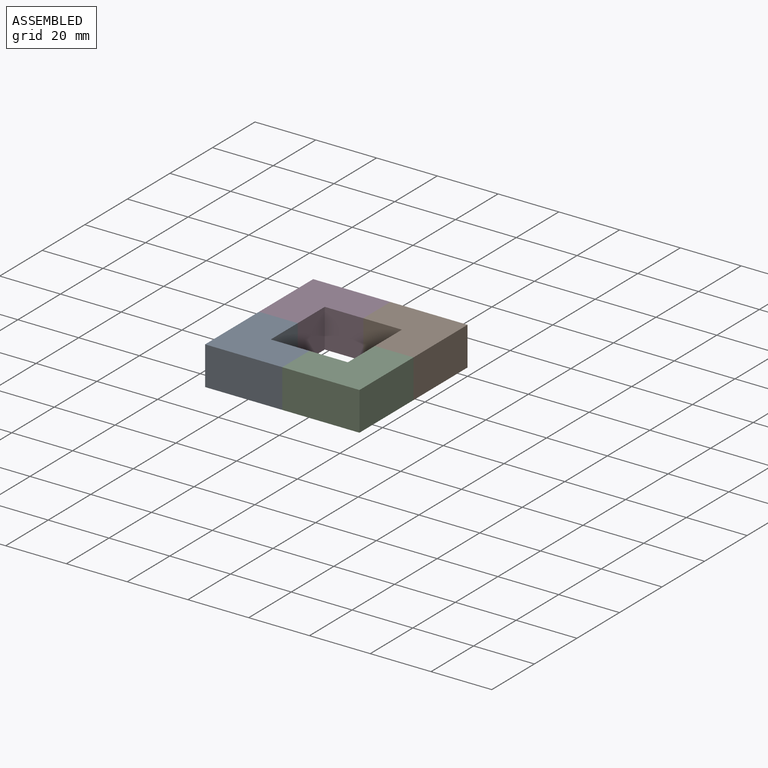
[diagram: assembled view]
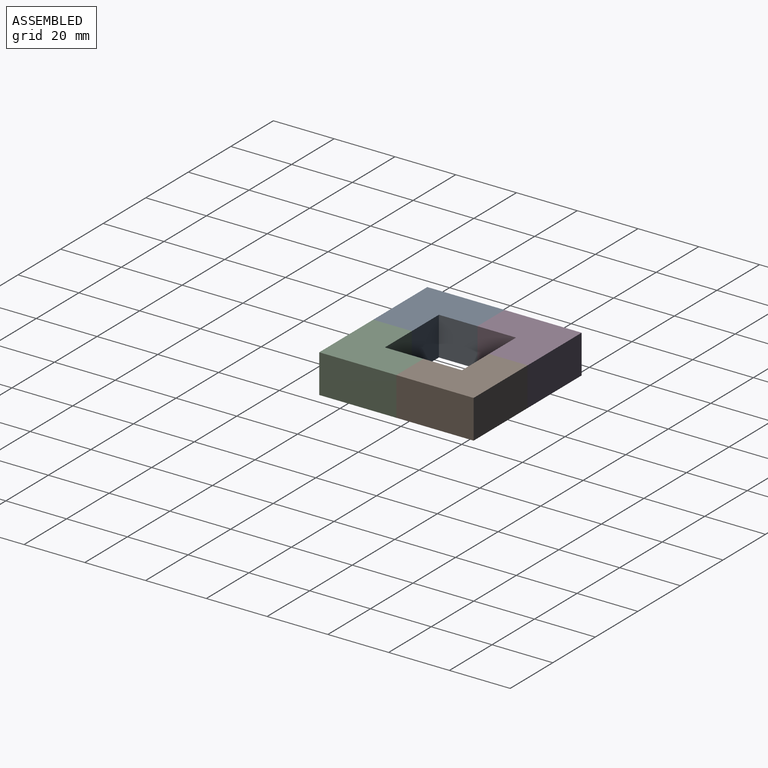
[diagram: assembled view, second angle]
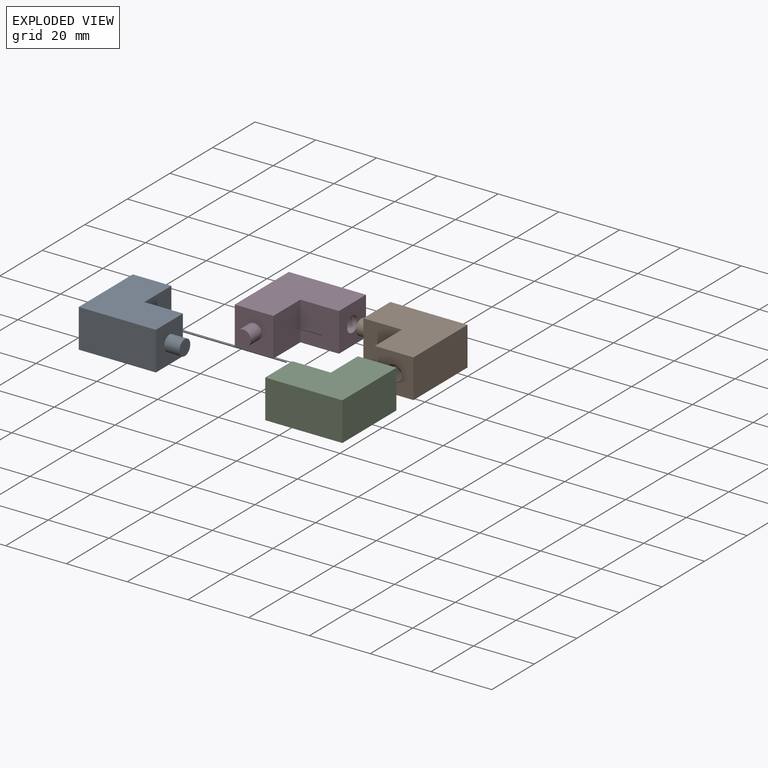
[diagram: exploded view]
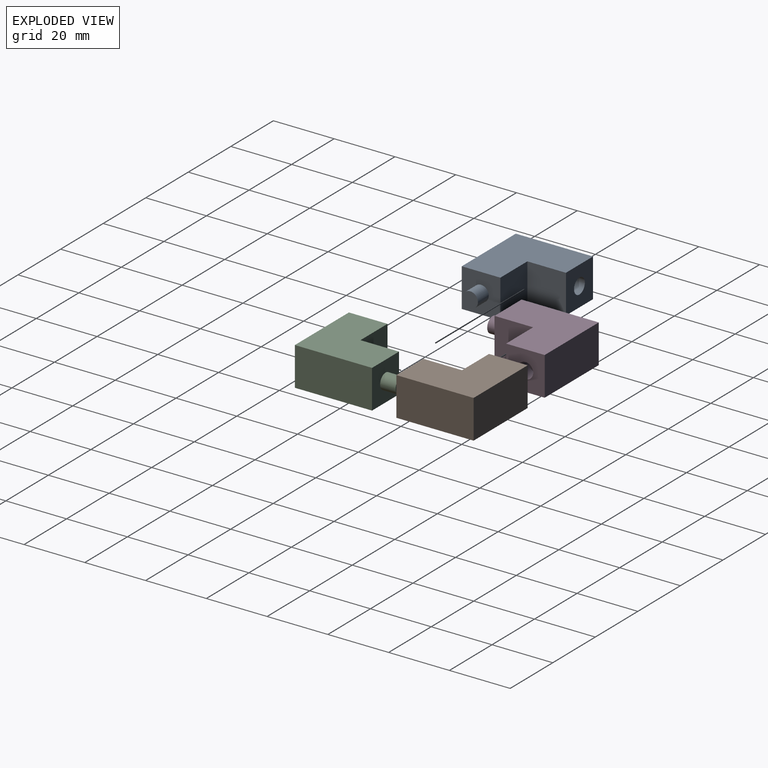
[diagram: exploded view, second angle]
ASSEMBLY  parts=4 mates=3
PART A: 12 faces, bbox 25.4x30.5x12.7 mm
  f0: plane 25.4x12.7mm, normal (-1,0,0), area 322.6mm2, adj f1,f5,f6,f7
  f1: plane 12.7x12.7mm, normal (0,-1,0), area 141mm2, adj f0,f2,f6,f7,f8
  f2: plane 12.7x12.7mm, normal (1,0,0), area 161.3mm2, adj f1,f3,f6,f7
  f3: plane 12.7x12.7mm, normal (0,-1,0), area 161.3mm2, adj f2,f4,f6,f7
  f4: plane 12.7x12.7mm, normal (1,0,0), area 141mm2, adj f3,f5,f6,f7,f10
  f5: plane 25.4x12.7mm, normal (0,1,0), area 322.6mm2, adj f0,f4,f6,f7
  f6: plane 25.4x25.4mm, normal (0,0,1), area 483.9mm2, adj f0,f1,f2,f3,f4,f5
  f7: plane 25.4x25.4mm, normal (0,0,-1), area 483.9mm2, adj f0,f1,f2,f3,f4,f5
  f8: cylinder r=2.54mm len=5.08mm, axis (0,1,0), area 81.1mm2, adj f1,f9
  f9: plane 5.08x5.08mm, normal (0,-1,0), area 20.3mm2, adj f8
  f10: cylinder r=2.54mm len=5.08mm, axis (1,0,0), area 81.1mm2, adj f4,f11
  f11: plane 5.08x5.08mm, normal (1,0,0), area 20.3mm2, adj f10
PART B: same geometry as A
PART C: same geometry as A
PART D: same geometry as A
PLACE A rot(axis=(0,0,1),90deg) t=(7.22,-29,-31.51)mm
PLACE B rot(axis=(0,0,-1),90deg) t=(18.25,-16.53,-31.51)mm
PLACE C rot(axis=(0,0,1),180deg) t=(18.97,-28.28,-31.51)mm
PLACE D t=(6.51,-17.25,-31.51)mm
MATE fastened C.f8 <-> B.f10  axis (0,1,0) through (31.79,-22.76,-25.16)mm
MATE fastened A.f8 <-> C.f10  axis (-1,0,0) through (12.74,-41.81,-25.16)mm
MATE fastened B.f8 <-> D.f10  axis (-1,0,0) through (12.74,-3.71,-25.16)mm
